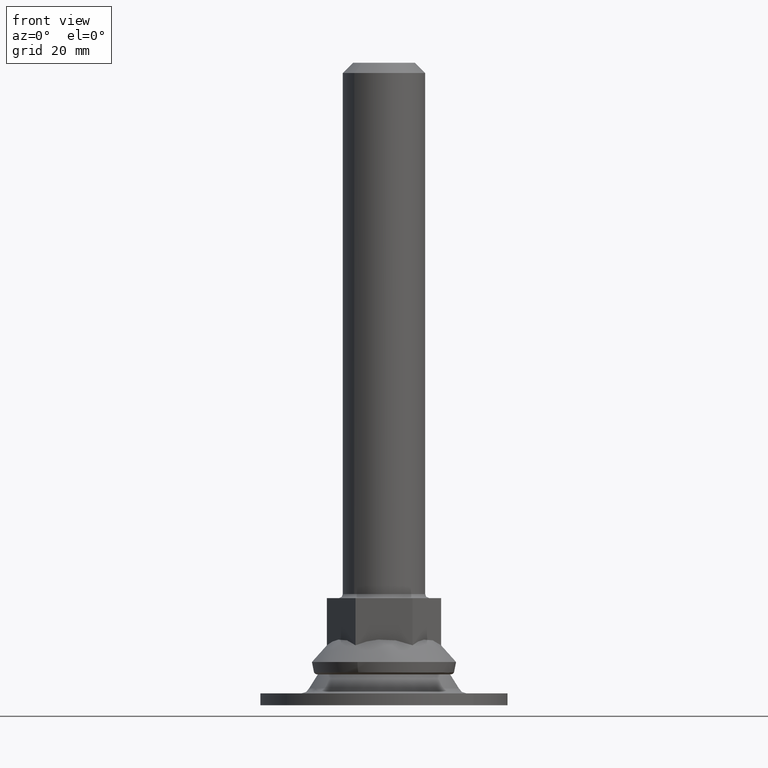
[diagram: clean part render]
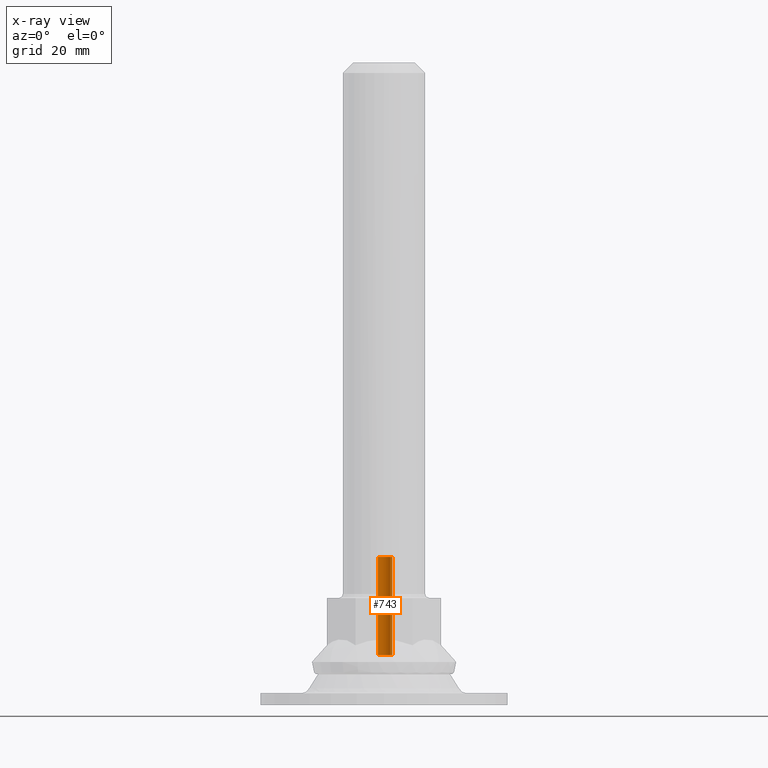
[diagram: x-ray — body ghosted, one internal face saturated and labeled with its STEP entity id]
A machine part, front view, then the same camera in x-ray: the body is ghosted and one INTERNAL B-rep face — a face not visible from any outside direction — is saturated and labeled: STEP entity #743.
In plain terms, the highlighted face is a freeform B-spline surface patch.
Its self-contained STEP definition (entity closure, byte-faithful):
#602=CARTESIAN_POINT('',(2.0,0.0,36.0));
#603=VERTEX_POINT('',#602);
#604=CARTESIAN_POINT('',(1.450747995867291,-1.376708750155929,36.0));
#605=VERTEX_POINT('',#604);
#606=CARTESIAN_POINT('',(2.0,0.0,36.0));
#607=CARTESIAN_POINT('',(2.000490272175209,-0.300626199108872,35.999999999999993));
#608=CARTESIAN_POINT('',(1.883630537041503,-0.806257082388577,36.000000000000092));
#609=CARTESIAN_POINT('',(1.592337243087638,-1.227606515503922,35.999999999999943));
#610=CARTESIAN_POINT('',(1.450747995867291,-1.376708750155929,36.0));
#611=B_SPLINE_CURVE_WITH_KNOTS('',3,(#606,#607,#608,#609,#610),.UNSPECIFIED.,.F.,.U.,(4,1,4),(0.000000074103901,0.901588570212755,1.518471967458551),.UNSPECIFIED.);
#612=EDGE_CURVE('',#603,#605,#611,.T.);
#614=CARTESIAN_POINT('',(0.000003274217810,1.999999999997320,36.0));
#615=VERTEX_POINT('',#614);
#616=CARTESIAN_POINT('',(0.000003274217810,1.999999999997320,36.0));
#617=CARTESIAN_POINT('',(0.245467264263777,2.000178393914228,35.999999999999993));
#618=CARTESIAN_POINT('',(0.638002346861911,1.926773386857258,36.000000000000043));
#619=CARTESIAN_POINT('',(1.222619391285574,1.623576427836049,36.000000000000043));
#620=CARTESIAN_POINT('',(1.682687710807788,1.163700895853243,35.999999999999893));
#621=CARTESIAN_POINT('',(1.951633894314597,0.556343283122478,36.000000000000028));
#622=CARTESIAN_POINT('',(2.000013162126371,0.163613013296088,36.000000000000043));
#623=CARTESIAN_POINT('',(2.0,0.0,36.0));
#624=B_SPLINE_CURVE_WITH_KNOTS('',3,(#616,#617,#618,#619,#620,#621,#622,#623),.UNSPECIFIED.,.F.,.U.,(4,1,1,1,1,4),(0.000000334336483,0.736326561006378,1.178157962660811,1.963511821320560,2.650791599208417,3.141669643254959),.UNSPECIFIED.);
#625=EDGE_CURVE('',#615,#603,#624,.T.);
#627=CARTESIAN_POINT('',(-1.450747995867292,1.376708750155929,35.999999999999993));
#628=VERTEX_POINT('',#627);
#629=CARTESIAN_POINT('',(-1.450747995867292,1.376708750155929,35.999999999999993));
#630=CARTESIAN_POINT('',(-1.311145848783250,1.523963325257850,35.999999999999972));
#631=CARTESIAN_POINT('',(-1.054210695537552,1.722914127344521,36.000000000000057));
#632=CARTESIAN_POINT('',(-0.557874552919358,1.943646430642184,35.999999999999922));
#633=CARTESIAN_POINT('',(-0.219829927175062,2.000154033149983,35.999999999999993));
#634=CARTESIAN_POINT('',(0.000003274217810,1.999999999997320,36.0));
#635=B_SPLINE_CURVE_WITH_KNOTS('',3,(#629,#630,#631,#632,#633,#634),.UNSPECIFIED.,.F.,.U.,(4,1,1,4),(0.000000079423353,0.608704475931007,0.963763210143987,1.623202415568593),.UNSPECIFIED.);
#636=EDGE_CURVE('',#628,#615,#635,.T.);
#674=CARTESIAN_POINT('',(-1.450748742024575,1.376709151387508,36.595579117749843));
#675=CARTESIAN_POINT('',(-0.074039590637067,2.827457893412082,36.595579117749836));
#676=CARTESIAN_POINT('',(1.376709151387508,1.450748742024575,36.595579117749843));
#677=CARTESIAN_POINT('',(2.827457893412082,0.074039590637067,36.595579117749836));
#678=CARTESIAN_POINT('',(1.450748742024575,-1.376709151387508,36.595579117749843));
#679=CARTESIAN_POINT('',(-1.450748742024575,1.376709151387508,11.566366694312910));
#680=CARTESIAN_POINT('',(-0.074039590637067,2.827457893412082,11.566366694312915));
#681=CARTESIAN_POINT('',(1.376709151387508,1.450748742024575,11.566366694312920));
#682=CARTESIAN_POINT('',(2.827457893412082,0.074039590637067,11.566366694312917));
#683=CARTESIAN_POINT('',(1.450748742024575,-1.376709151387508,11.566366694312920));
#691=(BOUNDED_SURFACE()B_SPLINE_SURFACE(2,1,((#674,#679),(#675,#680),(#676,#681),(#677,#682),(#678,#683)),.UNSPECIFIED.,.F.,.F.,.U.)B_SPLINE_SURFACE_WITH_KNOTS((3,2,3),(2,2),(0.0,3.313708498984759,6.627416997969519),(0.0,25.029212423436920),.UNSPECIFIED.)GEOMETRIC_REPRESENTATION_ITEM()RATIONAL_B_SPLINE_SURFACE(((1.0,1.0),(0.707106781186548,0.707106781186548),(1.0,1.0),(0.707106781186548,0.707106781186548),(1.0,1.0)))REPRESENTATION_ITEM('')SURFACE());
#692=CARTESIAN_POINT('',(-1.450748183552488,1.376708621441600,12.176835552079771));
#693=VERTEX_POINT('',#692);
#694=CARTESIAN_POINT('',(-1.450747995867292,1.376708750155929,35.999999999999993));
#695=CARTESIAN_POINT('',(-1.450748183552488,1.376708621441600,12.176835552079771));
#696=QUASI_UNIFORM_CURVE('',1,(#694,#695),.UNSPECIFIED.,.F.,.U.);
#697=EDGE_CURVE('',#628,#693,#696,.T.);
#698=ORIENTED_EDGE('',*,*,#697,.F.);
#699=ORIENTED_EDGE('',*,*,#636,.T.);
#700=ORIENTED_EDGE('',*,*,#625,.T.);
#701=ORIENTED_EDGE('',*,*,#612,.T.);
#702=CARTESIAN_POINT('',(1.450748183552488,-1.376708621441599,12.176835552079771));
#703=VERTEX_POINT('',#702);
#704=CARTESIAN_POINT('',(1.450747995867291,-1.376708750155929,36.0));
#705=CARTESIAN_POINT('',(1.450748183552488,-1.376708621441599,12.176835552079771));
#706=QUASI_UNIFORM_CURVE('',1,(#704,#705),.UNSPECIFIED.,.F.,.U.);
#707=EDGE_CURVE('',#605,#703,#706,.T.);
#708=ORIENTED_EDGE('',*,*,#707,.T.);
#709=CARTESIAN_POINT('',(2.0,0.0,12.176835290006499));
#710=VERTEX_POINT('',#709);
#711=CARTESIAN_POINT('',(2.0,0.0,12.176835290006499));
#712=CARTESIAN_POINT('',(2.000069453964497,-0.205618331766000,12.176835329148460));
#713=CARTESIAN_POINT('',(1.921328556553089,-0.711767607194702,12.176835425500119));
#714=CARTESIAN_POINT('',(1.658041016239789,-1.158979922707436,12.176835510632490));
#715=CARTESIAN_POINT('',(1.450748183552488,-1.376708621441599,12.176835552079771));
#716=B_SPLINE_CURVE_WITH_KNOTS('',3,(#711,#712,#713,#714,#715),.UNSPECIFIED.,.F.,.U.,(4,1,4),(0.000000074105898,0.616883388393221,1.518471762930202),.UNSPECIFIED.);
#717=EDGE_CURVE('',#710,#703,#716,.T.);
#718=ORIENTED_EDGE('',*,*,#717,.F.);
#719=CARTESIAN_POINT('',(0.000003274217809,1.999999999997320,12.176835290006499));
#720=VERTEX_POINT('',#719);
#721=CARTESIAN_POINT('',(0.000003274217809,1.999999999997320,12.176835290006499));
#722=CARTESIAN_POINT('',(0.212729377366232,2.000120141711571,12.176835290006499));
#723=CARTESIAN_POINT('',(0.605364834021645,1.936753356591943,12.176835290006490));
#724=CARTESIAN_POINT('',(1.095026624345775,1.697740492094181,12.176835290006499));
#725=CARTESIAN_POINT('',(1.485537102923100,1.369167591903928,12.176835290006499));
#726=CARTESIAN_POINT('',(1.746686155282164,1.007866127534914,12.176835290006441));
#727=CARTESIAN_POINT('',(1.947266283290394,0.539894567265713,12.176835290006620));
#728=CARTESIAN_POINT('',(2.000129405716834,0.212728647678610,12.176835290006430));
#729=CARTESIAN_POINT('',(2.0,0.0,12.176835290006499));
#730=B_SPLINE_CURVE_WITH_KNOTS('',3,(#721,#722,#723,#724,#725,#726,#727,#728,#729),.UNSPECIFIED.,.F.,.U.,(4,1,1,1,1,1,4),(0.000000334336486,0.638148557217255,1.178157962660828,1.619875435238643,2.159885438095457,2.503520223956609,3.141669643254960),.UNSPECIFIED.);
#731=EDGE_CURVE('',#720,#710,#730,.T.);
#732=ORIENTED_EDGE('',*,*,#731,.F.);
#733=CARTESIAN_POINT('',(-1.450748183552488,1.376708621441600,12.176835552079771));
#734=CARTESIAN_POINT('',(-1.276308413524456,1.560852340184518,12.176835520567840));
#735=CARTESIAN_POINT('',(-0.828168287010612,1.881263305758551,12.176835439612940));
#736=CARTESIAN_POINT('',(-0.287479355170272,2.000353383426090,12.176835341939279));
#737=CARTESIAN_POINT('',(0.000003274217809,1.999999999997320,12.176835290006499));
#738=B_SPLINE_CURVE_WITH_KNOTS('',3,(#733,#734,#735,#736,#737),.UNSPECIFIED.,.F.,.U.,(4,1,4),(0.000000079420923,0.760894382754696,1.623202657438705),.UNSPECIFIED.);
#739=EDGE_CURVE('',#693,#720,#738,.T.);
#740=ORIENTED_EDGE('',*,*,#739,.F.);
#741=EDGE_LOOP('',(#698,#699,#700,#701,#708,#718,#732,#740));
#742=FACE_OUTER_BOUND('',#741,.T.);
#743=ADVANCED_FACE('',(#742),#691,.T.);